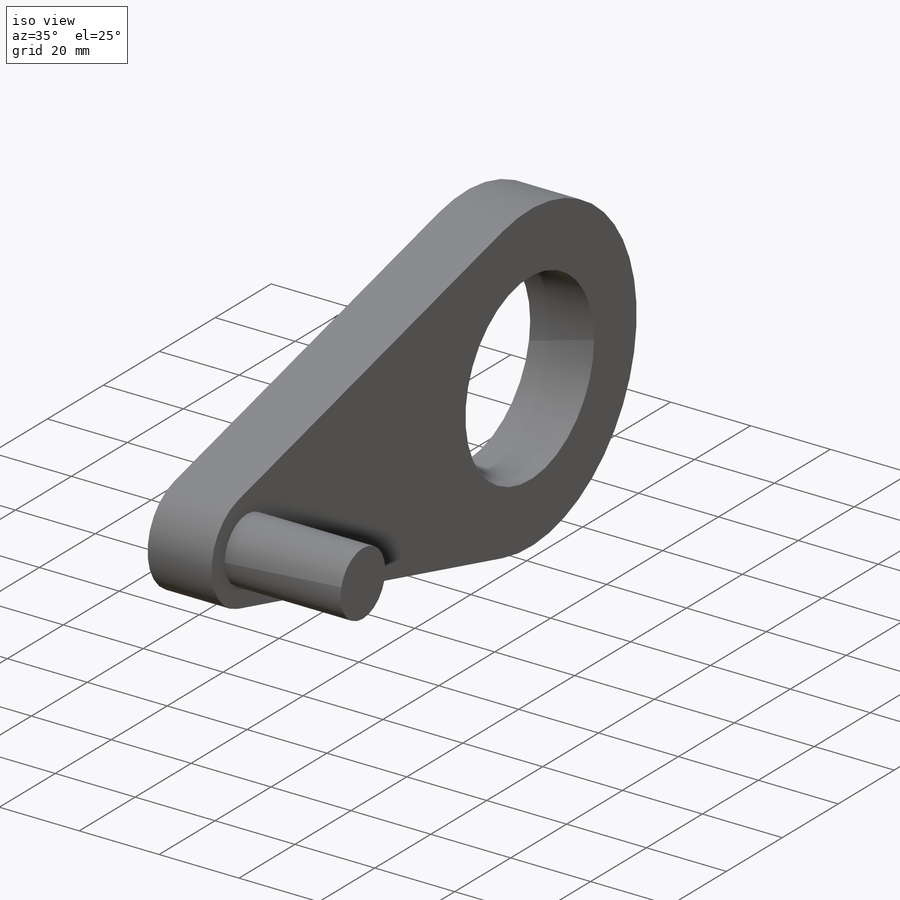
[diagram: iso view]
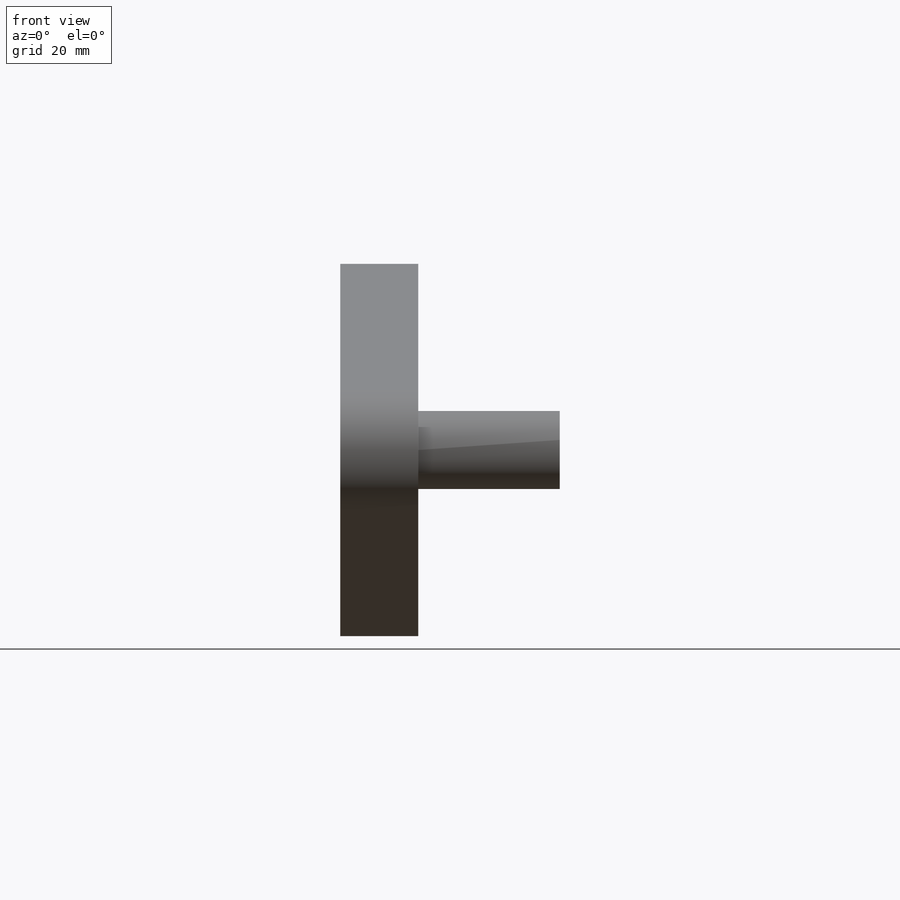
[diagram: front view]
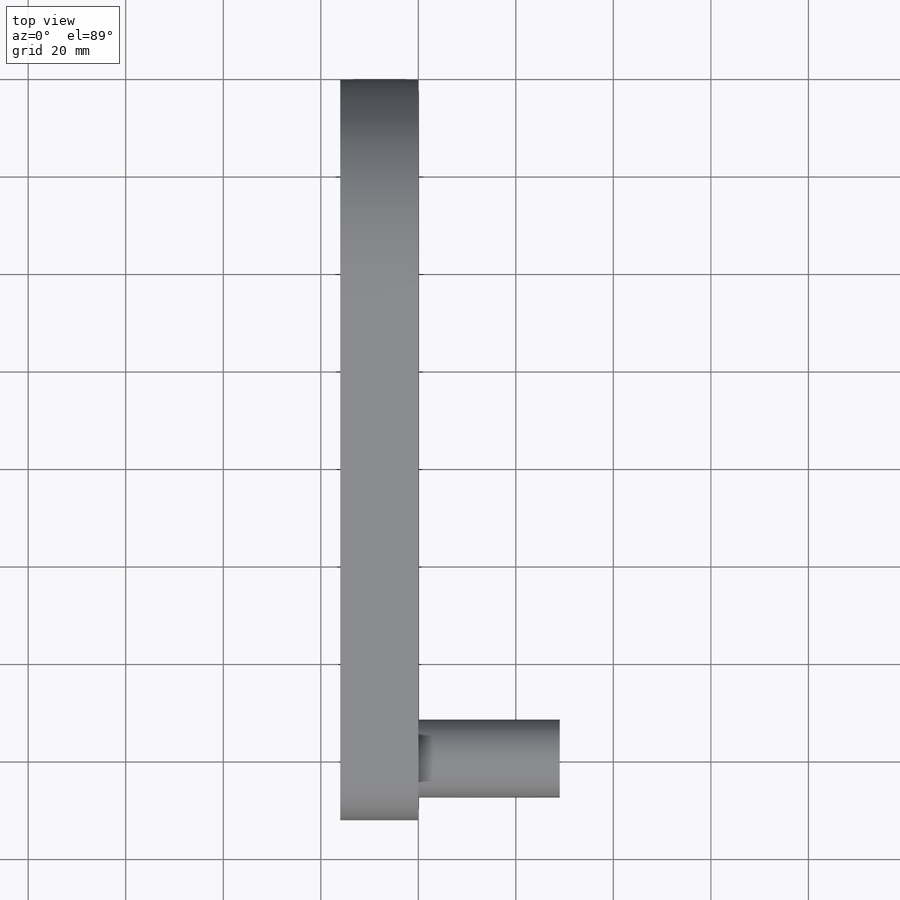
[diagram: top view]
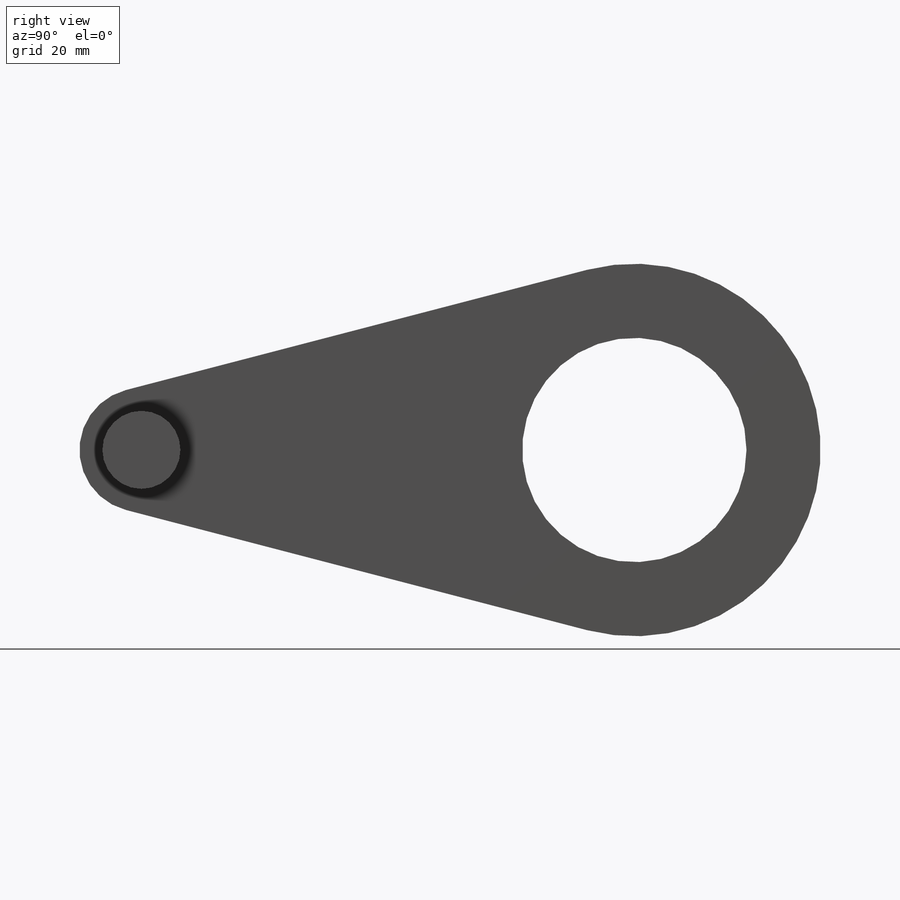
[diagram: right view]
SOLIDWORKS PART (.sldprt)
format: sldprt  version: not decoded by parser v0  size: 148,992 bytes
history: native  units: mm
features: sketch x3, extrude x3, material x1, cut_extrude x1 (+11 scaffold rows collapsed)
feature tree (19):
  scaffold x11  (default folders/planes/origin — collapsed)
  material  "Material <not specified>"
  sketch  "Sketch1"  dims[c1.D1=~28.303104mm c1.D2=76.4mm c1.D3=25.4mm c2.D1=101.1mm c2.D4=150.0mm]
  extrude  "Boss-Extrude1"  Depth=16mm
  sketch  "Sketch2"  dims[D1=~11.723508mm]
  extrude  "Boss-Extrude2"  Depth=29mm
  sketch  "Sketch3"  dims[D1=~21.328402mm]
  cut_extrude  "Cut-Extrude1"  Depth=16mm
  extrude  "Point2"  [1 undecoded]
decode coverage: 6 of 7 modeling features carry decoded parameters
note: ~ marks probable driven/reference dimensions
note: 1 parameter value undecoded
note: suppression state not decoded; provenance and decode notes live in map.json
